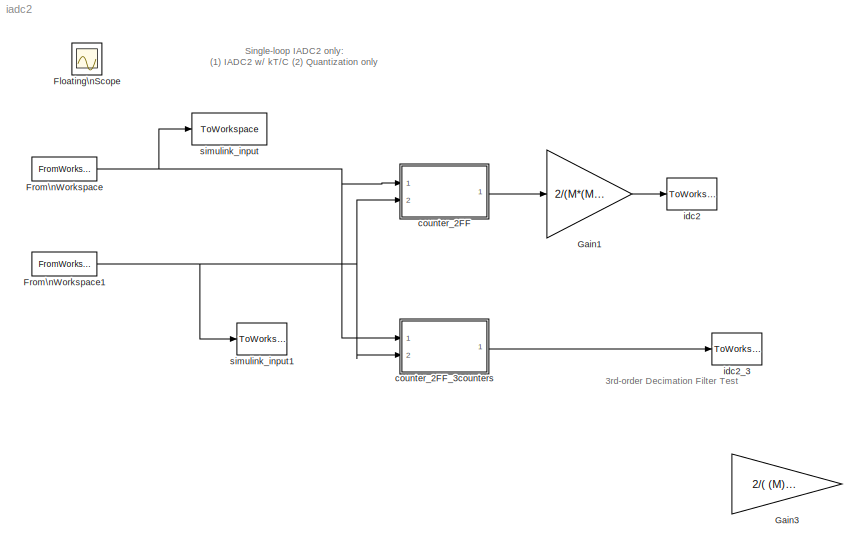
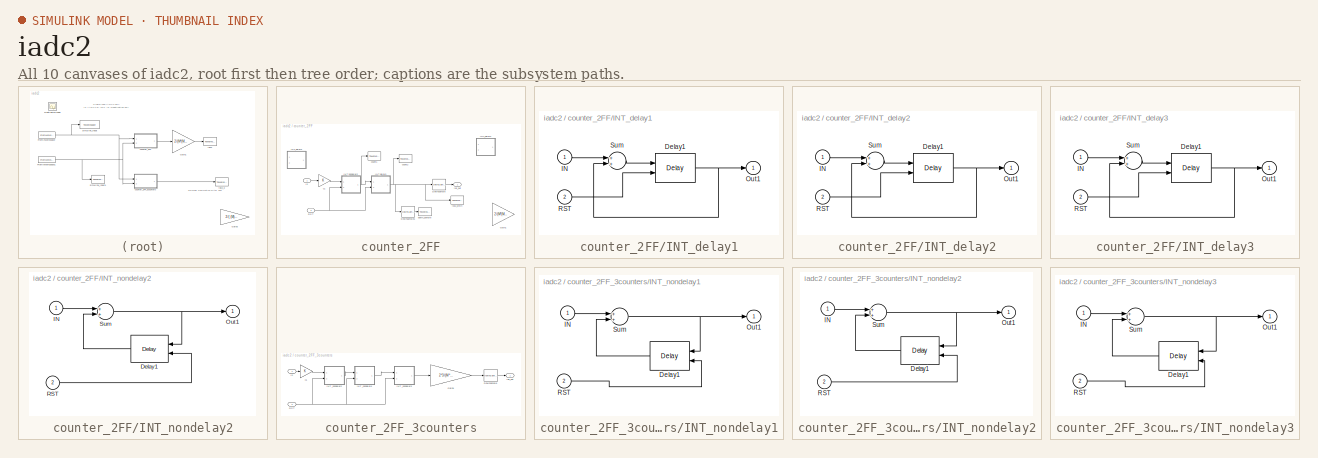
[diagram: thumbnail index - all 10 canvases of the model, root first then tree order]
MODEL iadc2
KIND model
BLOCK [Scope] Floating\nScope
  Floating = off
  IOType = viewer
  NumInputPorts = 1
  Ports = []
  SID = 82
  ScopeSpecificationString = C++SS(StrPVP('Location','[376, 294, 963, 755]'),StrPVP('Open','off'),MxPVP('AxesTitles',54,'struct(''axes1'',''%<SignalLabel>'')'),StrPVP('DataFormat','StructureWithTime'),StrPVP('BlockParamSampleTime','0'),StrPVP('LimitDataPoints','on'),StrPVP('Decimation','1'),StrPVP('BlockParamSampleInput','off'))
BLOCK [FromWorkspace] From\nWorkspace
  Interpolate = off
  OutputAfterFinalValue = Holding final value
  SID = 12716
  SampleTime = tclk
  VariableName = [t,test]
  ZeroCross = on
BLOCK [FromWorkspace] From\nWorkspace1
  Interpolate = off
  OutputAfterFinalValue = Holding final value
  SID = 12718
  SampleTime = tclk
  VariableName = [t, rst]
  ZeroCross = on
BLOCK [Gain] Gain1
  Gain = 2/(M*(M-1))
  OutDataTypeStr = Inherit: Inherit via internal rule
  ParamDataTypeStr = Inherit: Inherit via internal rule
  SID = 12863
  SaturateOnIntegerOverflow = off
BLOCK [Gain] Gain3
  Commented = on
  Gain = 2/( (M)*(M+1) )
  OutDataTypeStr = Inherit: Inherit via internal rule
  ParamDataTypeStr = Inherit: Inherit via internal rule
  SID = 12720
  SaturateOnIntegerOverflow = off
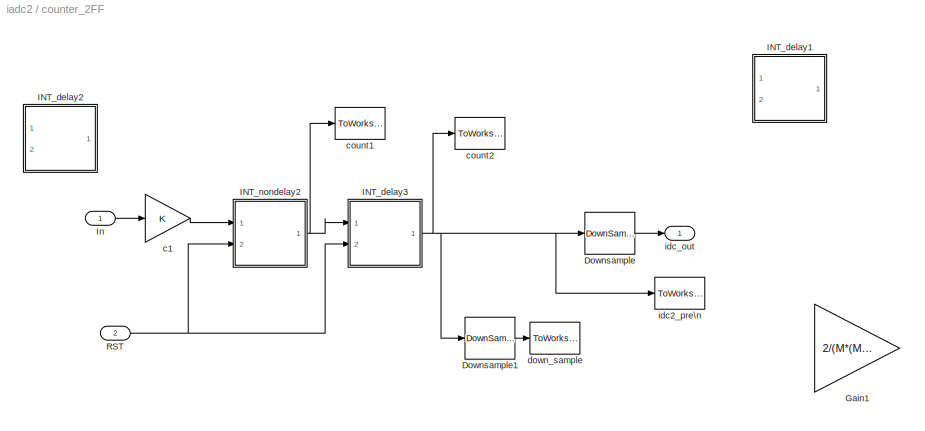
BLOCK [SubSystem] counter_2FF
  Ports = [2, 1]
  RequestExecContextInheritance = off
  SID = 12721
BLOCK [DownSample] counter_2FF/Downsample
  InputProcessing = Elements as channels (sample based)
  N = OSR
  RateOptions = Allow multirate processing
  SID = 12724
  UserData = DataTag0
  UserDataPersistent = on
  phase = OSR-1
BLOCK [DownSample] counter_2FF/Downsample1
  InputProcessing = Elements as channels (sample based)
  N = OSR
  RateOptions = Allow multirate processing
  SID = 12859
  UserData = DataTag1
  UserDataPersistent = on
  phase = OSR-1
BLOCK [Gain] counter_2FF/Gain1
  Commented = on
  Gain = 2/(M*(M-1))
  OutDataTypeStr = Inherit: Inherit via internal rule
  ParamDataTypeStr = Inherit: Inherit via internal rule
  SID = 12725
  SaturateOnIntegerOverflow = off
BLOCK [SubSystem] counter_2FF/INT_delay1
  Commented = on
  Ports = [2, 1]
  RequestExecContextInheritance = off
  SID = 12851
BLOCK [Delay] counter_2FF/INT_delay1/Delay1
  DelayLength = 1
  ExternalReset = Rising
  InitialCondition = 0
  InputPortMap = u0,r5
  Ports = [2, 1]
  SID = 12854
  UserData = DataTag2
  UserDataPersistent = on
BLOCK [Inport] counter_2FF/INT_delay1/IN
  IconDisplay = Port number
  SID = 12852
BLOCK [Outport] counter_2FF/INT_delay1/Out1
  IconDisplay = Port number
  SID = 12856
  VectorParamsAs1DForOutWhenUnconnected = off
BLOCK [Inport] counter_2FF/INT_delay1/RST
  IconDisplay = Port number
  Port = 2
  SID = 12853
BLOCK [Sum] counter_2FF/INT_delay1/Sum
  Ports = [2, 1]
  SID = 12855
BLOCK [SubSystem] counter_2FF/INT_delay2
  Commented = on
  Ports = [2, 1]
  RequestExecContextInheritance = off
  SID = 12839
BLOCK [Delay] counter_2FF/INT_delay2/Delay1
  DelayLength = 1
  ExternalReset = Rising
  InitialCondition = 0
  InputPortMap = u0,r5
  Ports = [2, 1]
  SID = 12842
  UserData = DataTag3
  UserDataPersistent = on
BLOCK [Inport] counter_2FF/INT_delay2/IN
  IconDisplay = Port number
  SID = 12840
BLOCK [Outport] counter_2FF/INT_delay2/Out1
  IconDisplay = Port number
  SID = 12844
  VectorParamsAs1DForOutWhenUnconnected = off
BLOCK [Inport] counter_2FF/INT_delay2/RST
  IconDisplay = Port number
  Port = 2
  SID = 12841
BLOCK [Sum] counter_2FF/INT_delay2/Sum
  Ports = [2, 1]
  SID = 12843
BLOCK [SubSystem] counter_2FF/INT_delay3
  Ports = [2, 1]
  RequestExecContextInheritance = off
  SID = 12845
BLOCK [Delay] counter_2FF/INT_delay3/Delay1
  DelayLength = 1
  ExternalReset = Rising
  InitialCondition = 0
  InputPortMap = u0,r5
  Ports = [2, 1]
  SID = 12848
  UserData = DataTag4
  UserDataPersistent = on
BLOCK [Inport] counter_2FF/INT_delay3/IN
  IconDisplay = Port number
  SID = 12846
BLOCK [Outport] counter_2FF/INT_delay3/Out1
  IconDisplay = Port number
  SID = 12850
  VectorParamsAs1DForOutWhenUnconnected = off
BLOCK [Inport] counter_2FF/INT_delay3/RST
  IconDisplay = Port number
  Port = 2
  SID = 12847
BLOCK [Sum] counter_2FF/INT_delay3/Sum
  Ports = [2, 1]
  SID = 12849
BLOCK [SubSystem] counter_2FF/INT_nondelay2
  Ports = [2, 1]
  RequestExecContextInheritance = off
  SID = 12833
BLOCK [Delay] counter_2FF/INT_nondelay2/Delay1
  DelayLength = 1
  ExternalReset = Rising
  InitialCondition = 0
  InputPortMap = u0,r5
  Ports = [2, 1]
  SID = 12836
  UserData = DataTag5
  UserDataPersistent = on
BLOCK [Inport] counter_2FF/INT_nondelay2/IN
  IconDisplay = Port number
  SID = 12834
BLOCK [Outport] counter_2FF/INT_nondelay2/Out1
  IconDisplay = Port number
  SID = 12838
  VectorParamsAs1DForOutWhenUnconnected = off
BLOCK [Inport] counter_2FF/INT_nondelay2/RST
  IconDisplay = Port number
  Port = 2
  SID = 12835
BLOCK [Sum] counter_2FF/INT_nondelay2/Sum
  Ports = [2, 1]
  SID = 12837
BLOCK [Inport] counter_2FF/In
  IconDisplay = Port number
  SID = 12722
BLOCK [Inport] counter_2FF/RST
  IconDisplay = Port number
  Port = 2
  SID = 12723
BLOCK [Gain] counter_2FF/c1
  SID = 12744
BLOCK [ToWorkspace] counter_2FF/count1
  MaxDataPoints = inf
  Ports = [1]
  SID = 12857
  SampleTime = -1
  VariableName = count1
BLOCK [ToWorkspace] counter_2FF/count2
  MaxDataPoints = inf
  Ports = [1]
  SID = 12858
  SampleTime = -1
  VariableName = count2
BLOCK [ToWorkspace] counter_2FF/down_sample
  MaxDataPoints = inf
  Ports = [1]
  SID = 12860
  SampleTime = -1
  VariableName = down_sample
BLOCK [ToWorkspace] counter_2FF/idc2_pre\n
  MaxDataPoints = inf
  Ports = [1]
  SID = 12826
  SampleTime = -1
  VariableName = idc2_pre
BLOCK [Outport] counter_2FF/idc_out
  IconDisplay = Port number
  SID = 12745
  VectorParamsAs1DForOutWhenUnconnected = off
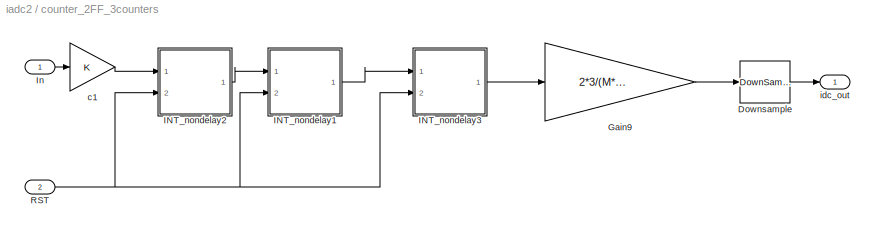
BLOCK [SubSystem] counter_2FF_3counters
  Commented = on
  Ports = [2, 1]
  RequestExecContextInheritance = off
  SID = 12746
BLOCK [DownSample] counter_2FF_3counters/Downsample
  InputProcessing = Elements as channels (sample based)
  N = OSR
  RateOptions = Allow multirate processing
  SID = 12749
  UserData = DataTag6
  UserDataPersistent = on
  phase = OSR-1
BLOCK [Gain] counter_2FF_3counters/Gain9
  Gain = 2*3/(M*(M-1)*(M-2))
  OutDataTypeStr = Inherit: Inherit via internal rule
  ParamDataTypeStr = Inherit: Inherit via internal rule
  SID = 12750
  SaturateOnIntegerOverflow = off
BLOCK [SubSystem] counter_2FF_3counters/INT_nondelay1
  Ports = [2, 1]
  RequestExecContextInheritance = off
  SID = 12751
BLOCK [Delay] counter_2FF_3counters/INT_nondelay1/Delay1
  DelayLength = 1
  ExternalReset = Rising
  InitialCondition = 0
  InputPortMap = u0,r5
  Ports = [2, 1]
  SID = 12754
  UserData = DataTag7
  UserDataPersistent = on
BLOCK [Inport] counter_2FF_3counters/INT_nondelay1/IN
  IconDisplay = Port number
  SID = 12752
BLOCK [Outport] counter_2FF_3counters/INT_nondelay1/Out1
  IconDisplay = Port number
  SID = 12756
  VectorParamsAs1DForOutWhenUnconnected = off
BLOCK [Inport] counter_2FF_3counters/INT_nondelay1/RST
  IconDisplay = Port number
  Port = 2
  SID = 12753
BLOCK [Sum] counter_2FF_3counters/INT_nondelay1/Sum
  Ports = [2, 1]
  SID = 12755
BLOCK [SubSystem] counter_2FF_3counters/INT_nondelay2
  Ports = [2, 1]
  RequestExecContextInheritance = off
  SID = 12757
BLOCK [Delay] counter_2FF_3counters/INT_nondelay2/Delay1
  DelayLength = 1
  ExternalReset = Rising
  InitialCondition = 0
  InputPortMap = u0,r5
  Ports = [2, 1]
  SID = 12760
  UserData = DataTag8
  UserDataPersistent = on
BLOCK [Inport] counter_2FF_3counters/INT_nondelay2/IN
  IconDisplay = Port number
  SID = 12758
BLOCK [Outport] counter_2FF_3counters/INT_nondelay2/Out1
  IconDisplay = Port number
  SID = 12762
  VectorParamsAs1DForOutWhenUnconnected = off
BLOCK [Inport] counter_2FF_3counters/INT_nondelay2/RST
  IconDisplay = Port number
  Port = 2
  SID = 12759
BLOCK [Sum] counter_2FF_3counters/INT_nondelay2/Sum
  Ports = [2, 1]
  SID = 12761
BLOCK [SubSystem] counter_2FF_3counters/INT_nondelay3
  Ports = [2, 1]
  RequestExecContextInheritance = off
  SID = 12763
BLOCK [Delay] counter_2FF_3counters/INT_nondelay3/Delay1
  DelayLength = 1
  ExternalReset = Rising
  InitialCondition = 0
  InputPortMap = u0,r5
  Ports = [2, 1]
  SID = 12766
  UserData = DataTag9
  UserDataPersistent = on
BLOCK [Inport] counter_2FF_3counters/INT_nondelay3/IN
  IconDisplay = Port number
  SID = 12764
BLOCK [Outport] counter_2FF_3counters/INT_nondelay3/Out1
  IconDisplay = Port number
  SID = 12768
  VectorParamsAs1DForOutWhenUnconnected = off
BLOCK [Inport] counter_2FF_3counters/INT_nondelay3/RST
  IconDisplay = Port number
  Port = 2
  SID = 12765
BLOCK [Sum] counter_2FF_3counters/INT_nondelay3/Sum
  Ports = [2, 1]
  SID = 12767
BLOCK [Inport] counter_2FF_3counters/In
  IconDisplay = Port number
  SID = 12747
BLOCK [Inport] counter_2FF_3counters/RST
  IconDisplay = Port number
  Port = 2
  SID = 12748
BLOCK [Gain] counter_2FF_3counters/c1
  SID = 12769
BLOCK [Outport] counter_2FF_3counters/idc_out
  IconDisplay = Port number
  SID = 12770
  VectorParamsAs1DForOutWhenUnconnected = off
BLOCK [ToWorkspace] idc2
  MaxDataPoints = inf
  Ports = [1]
  SID = 11835
  SampleTime = -1
  VariableName = idc2
BLOCK [ToWorkspace] idc2_3
  Commented = on
  MaxDataPoints = inf
  Ports = [1]
  SID = 11587
  SampleTime = -1
  VariableName = idc2_3
BLOCK [ToWorkspace] simulink_input
  MaxDataPoints = inf
  Ports = [1]
  SID = 12862
  SampleTime = -1
  VariableName = simulink_input
BLOCK [ToWorkspace] simulink_input1
  MaxDataPoints = inf
  Ports = [1]
  SID = 12861
  SampleTime = -1
  VariableName = simulink_rst
ANNOTATION (root): 3rd-order Decimation Filter Test
ANNOTATION (root): Single-loop IADC2 only: \n(1) IADC2 w/ kT/C (2) Quantization only
NET From\nWorkspace1:1 -> counter_2FF:2, counter_2FF_3counters:2, simulink_input1:1
NET From\nWorkspace:1 -> counter_2FF:1, counter_2FF_3counters:1, simulink_input:1
LINE Gain1:1 -> idc2:1
LINE counter_2FF/Downsample1:1 -> counter_2FF/down_sample:1
LINE counter_2FF/Downsample:1 -> counter_2FF/idc_out:1
NET counter_2FF/INT_delay1/Delay1:1 -> counter_2FF/INT_delay1/Out1:1, counter_2FF/INT_delay1/Sum:2
LINE counter_2FF/INT_delay1/IN:1 -> counter_2FF/INT_delay1/Sum:1
LINE counter_2FF/INT_delay1/RST:1 -> counter_2FF/INT_delay1/Delay1:2
LINE counter_2FF/INT_delay1/Sum:1 -> counter_2FF/INT_delay1/Delay1:1
NET counter_2FF/INT_delay2/Delay1:1 -> counter_2FF/INT_delay2/Out1:1, counter_2FF/INT_delay2/Sum:2
LINE counter_2FF/INT_delay2/IN:1 -> counter_2FF/INT_delay2/Sum:1
LINE counter_2FF/INT_delay2/RST:1 -> counter_2FF/INT_delay2/Delay1:2
LINE counter_2FF/INT_delay2/Sum:1 -> counter_2FF/INT_delay2/Delay1:1
NET counter_2FF/INT_delay3/Delay1:1 -> counter_2FF/INT_delay3/Out1:1, counter_2FF/INT_delay3/Sum:2
LINE counter_2FF/INT_delay3/IN:1 -> counter_2FF/INT_delay3/Sum:1
LINE counter_2FF/INT_delay3/RST:1 -> counter_2FF/INT_delay3/Delay1:2
LINE counter_2FF/INT_delay3/Sum:1 -> counter_2FF/INT_delay3/Delay1:1
NET counter_2FF/INT_delay3:1 -> counter_2FF/Downsample1:1, counter_2FF/Downsample:1, counter_2FF/count2:1, counter_2FF/idc2_pre\n:1
LINE counter_2FF/INT_nondelay2/Delay1:1 -> counter_2FF/INT_nondelay2/Sum:2
LINE counter_2FF/INT_nondelay2/IN:1 -> counter_2FF/INT_nondelay2/Sum:1
LINE counter_2FF/INT_nondelay2/RST:1 -> counter_2FF/INT_nondelay2/Delay1:2
NET counter_2FF/INT_nondelay2/Sum:1 -> counter_2FF/INT_nondelay2/Delay1:1, counter_2FF/INT_nondelay2/Out1:1
NET counter_2FF/INT_nondelay2:1 -> counter_2FF/INT_delay3:1, counter_2FF/count1:1
LINE counter_2FF/In:1 -> counter_2FF/c1:1
NET counter_2FF/RST:1 -> counter_2FF/INT_delay3:2, counter_2FF/INT_nondelay2:2
LINE counter_2FF/c1:1 -> counter_2FF/INT_nondelay2:1
LINE counter_2FF:1 -> Gain1:1
LINE counter_2FF_3counters/Downsample:1 -> counter_2FF_3counters/idc_out:1
LINE counter_2FF_3counters/Gain9:1 -> counter_2FF_3counters/Downsample:1
LINE counter_2FF_3counters/INT_nondelay1/Delay1:1 -> counter_2FF_3counters/INT_nondelay1/Sum:2
LINE counter_2FF_3counters/INT_nondelay1/IN:1 -> counter_2FF_3counters/INT_nondelay1/Sum:1
LINE counter_2FF_3counters/INT_nondelay1/RST:1 -> counter_2FF_3counters/INT_nondelay1/Delay1:2
NET counter_2FF_3counters/INT_nondelay1/Sum:1 -> counter_2FF_3counters/INT_nondelay1/Delay1:1, counter_2FF_3counters/INT_nondelay1/Out1:1
LINE counter_2FF_3counters/INT_nondelay1:1 -> counter_2FF_3counters/INT_nondelay3:1
LINE counter_2FF_3counters/INT_nondelay2/Delay1:1 -> counter_2FF_3counters/INT_nondelay2/Sum:2
LINE counter_2FF_3counters/INT_nondelay2/IN:1 -> counter_2FF_3counters/INT_nondelay2/Sum:1
LINE counter_2FF_3counters/INT_nondelay2/RST:1 -> counter_2FF_3counters/INT_nondelay2/Delay1:2
NET counter_2FF_3counters/INT_nondelay2/Sum:1 -> counter_2FF_3counters/INT_nondelay2/Delay1:1, counter_2FF_3counters/INT_nondelay2/Out1:1
LINE counter_2FF_3counters/INT_nondelay2:1 -> counter_2FF_3counters/INT_nondelay1:1
LINE counter_2FF_3counters/INT_nondelay3/Delay1:1 -> counter_2FF_3counters/INT_nondelay3/Sum:2
LINE counter_2FF_3counters/INT_nondelay3/IN:1 -> counter_2FF_3counters/INT_nondelay3/Sum:1
LINE counter_2FF_3counters/INT_nondelay3/RST:1 -> counter_2FF_3counters/INT_nondelay3/Delay1:2
NET counter_2FF_3counters/INT_nondelay3/Sum:1 -> counter_2FF_3counters/INT_nondelay3/Delay1:1, counter_2FF_3counters/INT_nondelay3/Out1:1
LINE counter_2FF_3counters/INT_nondelay3:1 -> counter_2FF_3counters/Gain9:1
LINE counter_2FF_3counters/In:1 -> counter_2FF_3counters/c1:1
NET counter_2FF_3counters/RST:1 -> counter_2FF_3counters/INT_nondelay1:2, counter_2FF_3counters/INT_nondelay2:2, counter_2FF_3counters/INT_nondelay3:2
LINE counter_2FF_3counters/c1:1 -> counter_2FF_3counters/INT_nondelay2:1
LINE counter_2FF_3counters:1 -> idc2_3:1
note: NET lines group one-source signal fan-out (src -> all destinations, sorted); 1:1 wires keep LINE
